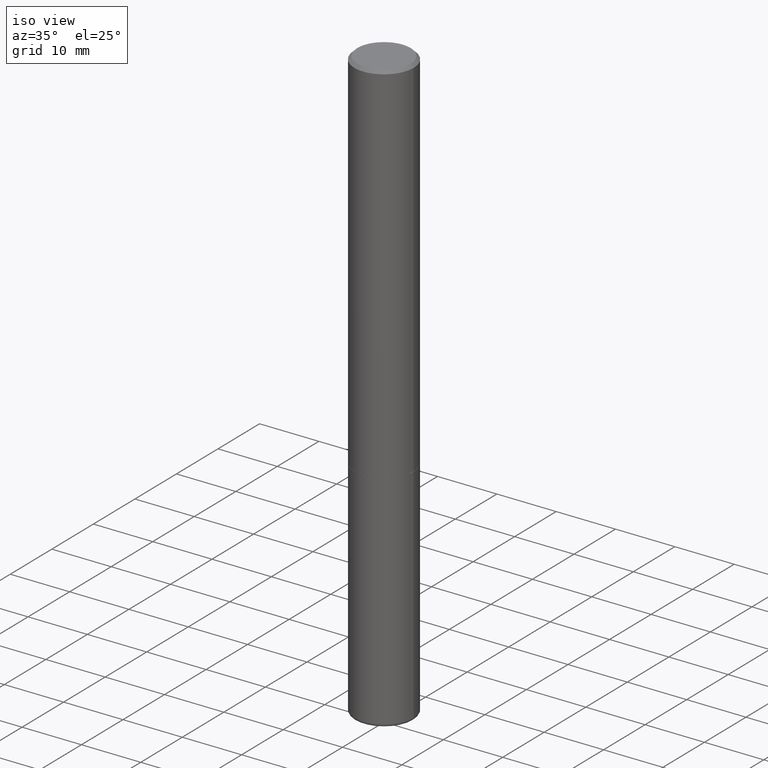
[diagram: clean part render]
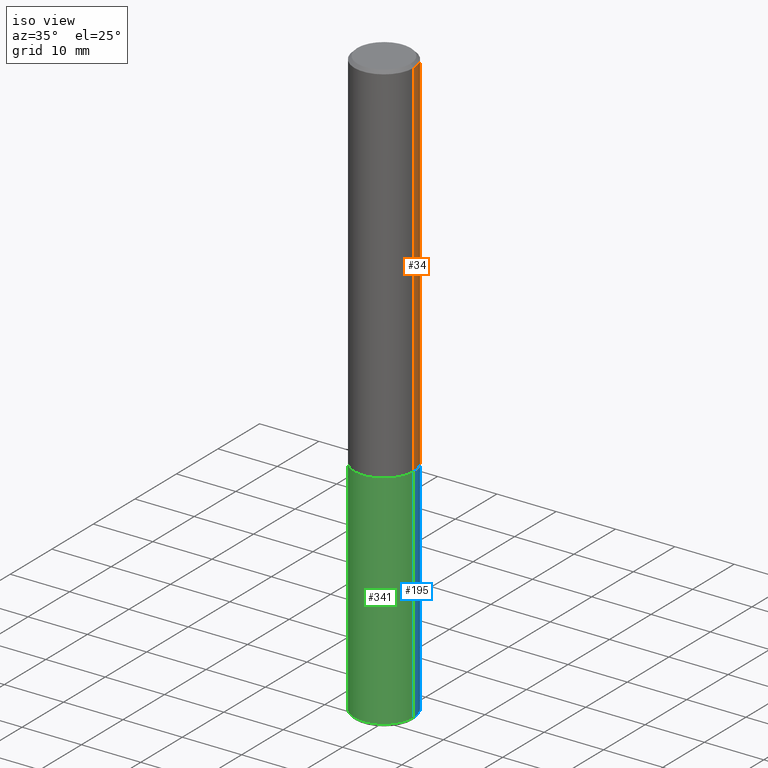
[diagram: same view with three faces highlighted in distinct colors, each labeled with its STEP entity id]
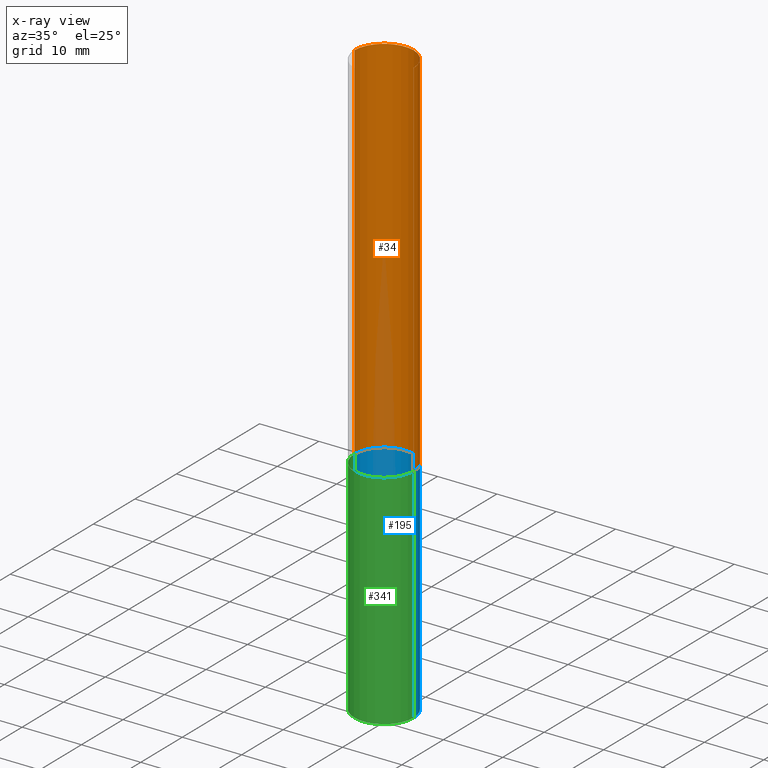
[diagram: x-ray of the same camera — body ghosted, the three highlighted faces saturated]
A machine part, iso view with three faces highlighted in distinct colors.
The next image is the same camera in x-ray (body ghosted, the three faces saturated) — at least one of them is partly hidden behind the body in this view.
Their STEP definitions:

[orange] entity #34 — the highlighted cylindrical surface (edge-blend (fillet) strip) has radius 5 mm, axis along (-0, 0, 1).
#11 = DIRECTION ( 'NONE',  ( -2.445468806185136597E-29, 3.491481338843145583E-15, 1.000000000000000000 ) ) ;
#17 = CARTESIAN_POINT ( 'NONE',  ( -0.1968500000000001360, 1.398703375343758182E-15, -9.682923725166790684E-30 ) ) ;
#28 = CARTESIAN_POINT ( 'NONE',  ( 0.1968500000000000527, -1.420318657638189516E-15, -0.02000000000000004205 ) ) ;
#34 = ADVANCED_FACE ( 'NONE', ( #213 ), #417, .T. ) ;
#37 = CARTESIAN_POINT ( 'NONE',  ( 0.1968500000000002470, -9.893461521745933144E-15, -2.439900000000000180 ) ) ;
#43 = VERTEX_POINT ( 'NONE', #48 ) ;
#45 = DIRECTION ( 'NONE',  ( -2.445468806185136597E-29, 3.491481338843145583E-15, 1.000000000000000000 ) ) ;
#48 = CARTESIAN_POINT ( 'NONE',  ( -0.1968500000000002470, -2.895644097366365685E-15, -2.439900000000000180 ) ) ;
#55 = CIRCLE ( 'NONE', #180, 0.1968500000000000527 ) ;
#69 = AXIS2_PLACEMENT_3D ( 'NONE', #233, #90, #220 ) ;
#90 = DIRECTION ( 'NONE',  ( -2.445468806185136597E-29, 3.491481338843145583E-15, 1.000000000000000000 ) ) ;
#104 = LINE ( 'NONE', #17, #139 ) ;
#105 = EDGE_CURVE ( 'NONE', #279, #132, #410, .T. ) ;
#112 = AXIS2_PLACEMENT_3D ( 'NONE', #173, #45, #201 ) ;
#116 = EDGE_CURVE ( 'NONE', #132, #140, #55, .T. ) ;
#129 = ORIENTED_EDGE ( 'NONE', *, *, #116, .F. ) ;
#132 = VERTEX_POINT ( 'NONE', #28 ) ;
#139 = VECTOR ( 'NONE', #344, 39.37007874015748143 ) ;
#140 = VERTEX_POINT ( 'NONE', #244 ) ;
#173 = CARTESIAN_POINT ( 'NONE',  ( 0.000000000000000000, 0.000000000000000000, 0.000000000000000000 ) ) ;
#180 = AXIS2_PLACEMENT_3D ( 'NONE', #360, #11, #209 ) ;
#191 = ORIENTED_EDGE ( 'NONE', *, *, #105, .F. ) ;
#199 = ORIENTED_EDGE ( 'NONE', *, *, #258, .T. ) ;
#201 = DIRECTION ( 'NONE',  ( 1.000000000000000000, -6.982962677686266711E-15, 4.876176775795935793E-29 ) ) ;
#202 = CARTESIAN_POINT ( 'NONE',  ( 0.1968500000000001360, -1.374596203102542594E-15, 9.598753983154306463E-30 ) ) ;
#209 = DIRECTION ( 'NONE',  ( 1.000000000000000000, -6.982962677686266711E-15, 0.000000000000000000 ) ) ;
#213 = FACE_OUTER_BOUND ( 'NONE', #304, .T. ) ;
#220 = DIRECTION ( 'NONE',  ( 1.000000000000000000, -6.982962677686265133E-15, 0.000000000000000000 ) ) ;
#233 = CARTESIAN_POINT ( 'NONE',  ( 5.966699340211115678E-29, -8.518865318643391536E-15, -2.439900000000000180 ) ) ;
#241 = CIRCLE ( 'NONE', #69, 0.1968500000000002470 ) ;
#244 = CARTESIAN_POINT ( 'NONE',  ( -0.1968500000000000527, 1.304766576325678902E-15, -0.02000000000000004205 ) ) ;
#258 = EDGE_CURVE ( 'NONE', #43, #140, #104, .T. ) ;
#279 = VERTEX_POINT ( 'NONE', #37 ) ;
#281 = EDGE_CURVE ( 'NONE', #279, #43, #241, .T. ) ;
#304 = EDGE_LOOP ( 'NONE', ( #374, #199, #129, #191 ) ) ;
#343 = DIRECTION ( 'NONE',  ( -2.445468806185136877E-29, 3.491481338843145188E-15, 1.000000000000000000 ) ) ;
#344 = DIRECTION ( 'NONE',  ( -2.445468806185136877E-29, 3.491481338843145188E-15, 1.000000000000000000 ) ) ;
#360 = CARTESIAN_POINT ( 'NONE',  ( 4.890937612370283668E-31, -6.982962677686305168E-17, -0.02000000000000004205 ) ) ;
#374 = ORIENTED_EDGE ( 'NONE', *, *, #281, .T. ) ;
#375 = VECTOR ( 'NONE', #343, 39.37007874015748143 ) ;
#410 = LINE ( 'NONE', #202, #375 ) ;
#417 = CYLINDRICAL_SURFACE ( 'NONE', #112, 0.1968500000000001360 ) ;

[blue] entity #195 — the highlighted cylindrical surface (edge-blend (fillet) strip) has radius 5 mm, axis along (-0, 0, 1).
#4 = CIRCLE ( 'NONE', #52, 0.1968500000000000250 ) ;
#27 = EDGE_CURVE ( 'NONE', #394, #272, #345, .T. ) ;
#31 = CARTESIAN_POINT ( 'NONE',  ( 0.000000000000000000, 0.000000000000000000, 0.000000000000000000 ) ) ;
#52 = AXIS2_PLACEMENT_3D ( 'NONE', #396, #98, #352 ) ;
#73 = CARTESIAN_POINT ( 'NONE',  ( 9.579634954469036932E-29, -1.367717984865025539E-14, -3.917300000000000448 ) ) ;
#96 = VERTEX_POINT ( 'NONE', #339 ) ;
#98 = DIRECTION ( 'NONE',  ( -2.445468806185136597E-29, 3.491481338843145583E-15, 1.000000000000000000 ) ) ;
#100 = ORIENTED_EDGE ( 'NONE', *, *, #107, .F. ) ;
#102 = ORIENTED_EDGE ( 'NONE', *, *, #184, .F. ) ;
#107 = EDGE_CURVE ( 'NONE', #231, #96, #185, .T. ) ;
#122 = FACE_OUTER_BOUND ( 'NONE', #406, .T. ) ;
#130 = DIRECTION ( 'NONE',  ( 1.000000000000000000, -6.982962677686266711E-15, 4.876176775795935793E-29 ) ) ;
#170 = VECTOR ( 'NONE', #313, 39.37007874015748143 ) ;
#184 = EDGE_CURVE ( 'NONE', #96, #272, #4, .T. ) ;
#185 = LINE ( 'NONE', #334, #240 ) ;
#190 = CARTESIAN_POINT ( 'NONE',  ( 0.1968499999999998029, -1.505177605175279542E-14, -3.917300000000000448 ) ) ;
#195 = ADVANCED_FACE ( 'NONE', ( #122 ), #228, .T. ) ;
#207 = CARTESIAN_POINT ( 'NONE',  ( -0.1968499999999998029, -1.227847647330649996E-14, -3.917300000000000448 ) ) ;
#214 = DIRECTION ( 'NONE',  ( -2.445468806185136877E-29, 3.491481338843145188E-15, 1.000000000000000000 ) ) ;
#228 = CYLINDRICAL_SURFACE ( 'NONE', #251, 0.1968499999999999694 ) ;
#231 = VERTEX_POINT ( 'NONE', #190 ) ;
#240 = VECTOR ( 'NONE', #214, 39.37007874015748143 ) ;
#248 = ORIENTED_EDGE ( 'NONE', *, *, #391, .T. ) ;
#251 = AXIS2_PLACEMENT_3D ( 'NONE', #31, #294, #130 ) ;
#255 = DIRECTION ( 'NONE',  ( 1.000000000000000000, -6.982962677686269866E-15, 0.000000000000000000 ) ) ;
#260 = CARTESIAN_POINT ( 'NONE',  ( -0.1968500000000000250, -9.701064948972487965E-15, -2.440900000000000070 ) ) ;
#272 = VERTEX_POINT ( 'NONE', #260 ) ;
#292 = AXIS2_PLACEMENT_3D ( 'NONE', #73, #377, #255 ) ;
#294 = DIRECTION ( 'NONE',  ( -2.445468806185136597E-29, 3.491481338843145583E-15, 1.000000000000000000 ) ) ;
#301 = ORIENTED_EDGE ( 'NONE', *, *, #27, .T. ) ;
#313 = DIRECTION ( 'NONE',  ( -2.445468806185136877E-29, 3.491481338843145188E-15, 1.000000000000000000 ) ) ;
#334 = CARTESIAN_POINT ( 'NONE',  ( 0.1968499999999999694, -1.374596203102541411E-15, 9.598753983154298056E-30 ) ) ;
#339 = CARTESIAN_POINT ( 'NONE',  ( 0.1968500000000000250, -9.896953003084776152E-15, -2.440900000000000070 ) ) ;
#345 = LINE ( 'NONE', #349, #170 ) ;
#349 = CARTESIAN_POINT ( 'NONE',  ( -0.1968499999999999694, 1.398703375343756999E-15, -9.682923725166782276E-30 ) ) ;
#352 = DIRECTION ( 'NONE',  ( 1.000000000000000000, -6.982962677686267499E-15, 0.000000000000000000 ) ) ;
#368 = CIRCLE ( 'NONE', #292, 0.1968499999999999694 ) ;
#377 = DIRECTION ( 'NONE',  ( -2.445468806185136597E-29, 3.491481338843145583E-15, 1.000000000000000000 ) ) ;
#391 = EDGE_CURVE ( 'NONE', #231, #394, #368, .T. ) ;
#394 = VERTEX_POINT ( 'NONE', #207 ) ;
#396 = CARTESIAN_POINT ( 'NONE',  ( 5.969144809017300159E-29, -8.522356799982234543E-15, -2.440900000000000070 ) ) ;
#406 = EDGE_LOOP ( 'NONE', ( #248, #301, #102, #100 ) ) ;

[green] entity #341 — the highlighted cylindrical surface (edge-blend (fillet) strip) has radius 5 mm, axis along (-0, 0, 1).
#10 = ORIENTED_EDGE ( 'NONE', *, *, #107, .T. ) ;
#16 = EDGE_CURVE ( 'NONE', #394, #231, #138, .T. ) ;
#20 = DIRECTION ( 'NONE',  ( -2.445468806185136597E-29, 3.491481338843145583E-15, 1.000000000000000000 ) ) ;
#25 = DIRECTION ( 'NONE',  ( -2.445468806185136597E-29, 3.491481338843145583E-15, 1.000000000000000000 ) ) ;
#27 = EDGE_CURVE ( 'NONE', #394, #272, #345, .T. ) ;
#32 = CIRCLE ( 'NONE', #405, 0.1968500000000000250 ) ;
#38 = ORIENTED_EDGE ( 'NONE', *, *, #49, .F. ) ;
#39 = CYLINDRICAL_SURFACE ( 'NONE', #252, 0.1968499999999999694 ) ;
#46 = AXIS2_PLACEMENT_3D ( 'NONE', #84, #20, #50 ) ;
#49 = EDGE_CURVE ( 'NONE', #272, #96, #32, .T. ) ;
#50 = DIRECTION ( 'NONE',  ( 1.000000000000000000, -6.982962677686269866E-15, 0.000000000000000000 ) ) ;
#65 = FACE_OUTER_BOUND ( 'NONE', #299, .T. ) ;
#84 = CARTESIAN_POINT ( 'NONE',  ( 9.579634954469036932E-29, -1.367717984865025539E-14, -3.917300000000000448 ) ) ;
#96 = VERTEX_POINT ( 'NONE', #339 ) ;
#107 = EDGE_CURVE ( 'NONE', #231, #96, #185, .T. ) ;
#138 = CIRCLE ( 'NONE', #46, 0.1968499999999999694 ) ;
#168 = CARTESIAN_POINT ( 'NONE',  ( 5.969144809017300159E-29, -8.522356799982234543E-15, -2.440900000000000070 ) ) ;
#170 = VECTOR ( 'NONE', #313, 39.37007874015748143 ) ;
#185 = LINE ( 'NONE', #334, #240 ) ;
#190 = CARTESIAN_POINT ( 'NONE',  ( 0.1968499999999998029, -1.505177605175279542E-14, -3.917300000000000448 ) ) ;
#207 = CARTESIAN_POINT ( 'NONE',  ( -0.1968499999999998029, -1.227847647330649996E-14, -3.917300000000000448 ) ) ;
#214 = DIRECTION ( 'NONE',  ( -2.445468806185136877E-29, 3.491481338843145188E-15, 1.000000000000000000 ) ) ;
#231 = VERTEX_POINT ( 'NONE', #190 ) ;
#240 = VECTOR ( 'NONE', #214, 39.37007874015748143 ) ;
#252 = AXIS2_PLACEMENT_3D ( 'NONE', #302, #25, #283 ) ;
#260 = CARTESIAN_POINT ( 'NONE',  ( -0.1968500000000000250, -9.701064948972487965E-15, -2.440900000000000070 ) ) ;
#264 = ORIENTED_EDGE ( 'NONE', *, *, #27, .F. ) ;
#272 = VERTEX_POINT ( 'NONE', #260 ) ;
#277 = DIRECTION ( 'NONE',  ( 1.000000000000000000, -6.982962677686267499E-15, 0.000000000000000000 ) ) ;
#283 = DIRECTION ( 'NONE',  ( 1.000000000000000000, -6.982962677686266711E-15, 4.876176775795935793E-29 ) ) ;
#299 = EDGE_LOOP ( 'NONE', ( #264, #327, #10, #38 ) ) ;
#302 = CARTESIAN_POINT ( 'NONE',  ( 0.000000000000000000, 0.000000000000000000, 0.000000000000000000 ) ) ;
#307 = DIRECTION ( 'NONE',  ( -2.445468806185136597E-29, 3.491481338843145583E-15, 1.000000000000000000 ) ) ;
#313 = DIRECTION ( 'NONE',  ( -2.445468806185136877E-29, 3.491481338843145188E-15, 1.000000000000000000 ) ) ;
#327 = ORIENTED_EDGE ( 'NONE', *, *, #16, .T. ) ;
#334 = CARTESIAN_POINT ( 'NONE',  ( 0.1968499999999999694, -1.374596203102541411E-15, 9.598753983154298056E-30 ) ) ;
#339 = CARTESIAN_POINT ( 'NONE',  ( 0.1968500000000000250, -9.896953003084776152E-15, -2.440900000000000070 ) ) ;
#341 = ADVANCED_FACE ( 'NONE', ( #65 ), #39, .T. ) ;
#345 = LINE ( 'NONE', #349, #170 ) ;
#349 = CARTESIAN_POINT ( 'NONE',  ( -0.1968499999999999694, 1.398703375343756999E-15, -9.682923725166782276E-30 ) ) ;
#394 = VERTEX_POINT ( 'NONE', #207 ) ;
#405 = AXIS2_PLACEMENT_3D ( 'NONE', #168, #307, #277 ) ;